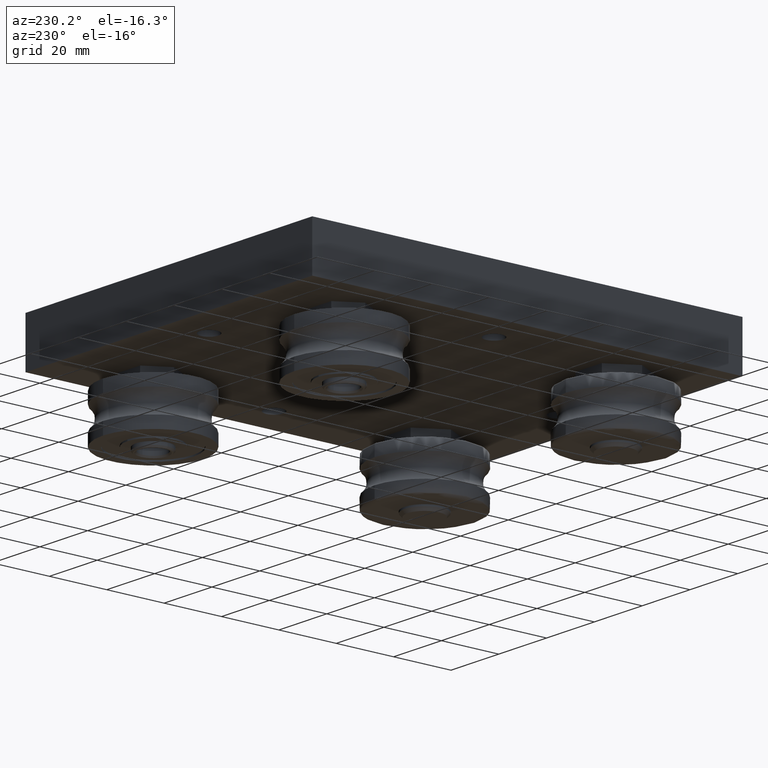
[diagram: clean part render]
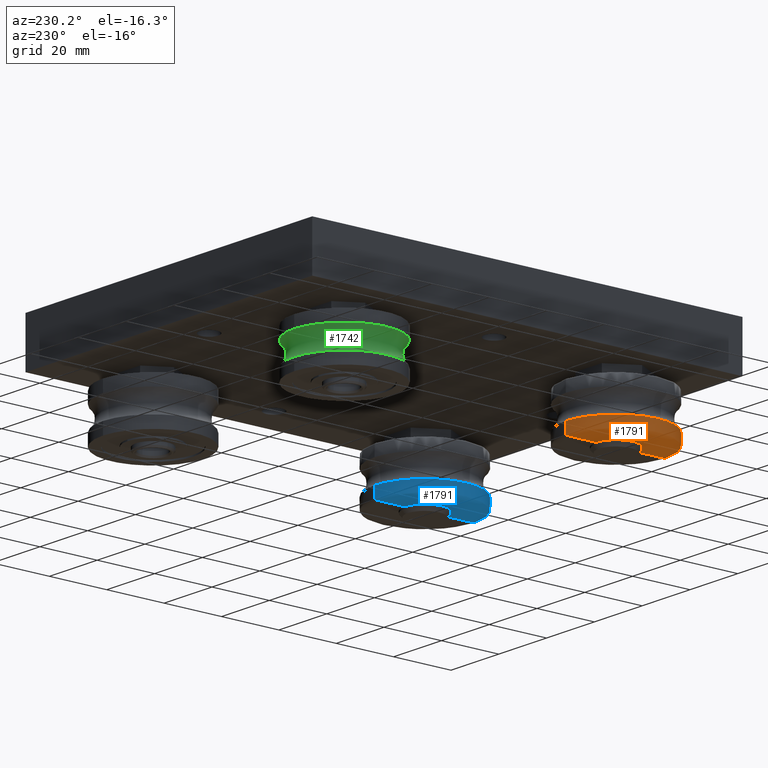
[diagram: same view with three faces highlighted in distinct colors, each labeled with its STEP entity id]
A machine part, auxiliary view with three faces highlighted in distinct colors.
Their STEP definitions:

[orange] entity #1791 — the highlighted face is a freeform B-spline surface patch.
#16=(
BOUNDED_SURFACE()
B_SPLINE_SURFACE(2,2,((#3297,#3298,#3299,#3300,#3301,#3302,#3303,#3304,
#3305),(#3306,#3307,#3308,#3309,#3310,#3311,#3312,#3313,#3314),(#3315,#3316,
#3317,#3318,#3319,#3320,#3321,#3322,#3323),(#3324,#3325,#3326,#3327,#3328,
#3329,#3330,#3331,#3332),(#3333,#3334,#3335,#3336,#3337,#3338,#3339,#3340,
#3341),(#3342,#3343,#3344,#3345,#3346,#3347,#3348,#3349,#3350),(#3351,#3352,
#3353,#3354,#3355,#3356,#3357,#3358,#3359)),.UNSPECIFIED.,.F.,.T.,.F.)
B_SPLINE_SURFACE_WITH_KNOTS((3,2,2,3),(3,2,2,2,3),(-15.7666360627003,-12.1996117257709,
-11.4142135623734,-1.41421356237309),(4.71238898038469,6.28318530717959,
7.85398163397448,9.42477796076938,10.9955742875643),.UNSPECIFIED.)
GEOMETRIC_REPRESENTATION_ITEM()
RATIONAL_B_SPLINE_SURFACE(((1.,0.707106781186548,1.,0.707106781186548,1.,
0.707106781186548,1.,0.707106781186548,1.),(1.,0.707106781186548,1.,0.707106781186548,
1.,0.707106781186548,1.,0.707106781186548,1.),(1.,0.707106781186548,1.,
0.707106781186548,1.,0.707106781186548,1.,0.707106781186548,1.),(0.707106781186549,
0.500000000000001,0.707106781186549,0.500000000000001,0.707106781186549,
0.500000000000001,0.707106781186549,0.500000000000001,0.707106781186549),
(1.,0.707106781186548,1.,0.707106781186548,1.,0.707106781186548,1.,0.707106781186548,
1.),(1.,0.707106781186548,1.,0.707106781186548,1.,0.707106781186548,1.,
0.707106781186548,1.),(1.,0.707106781186548,1.,0.707106781186548,1.,0.707106781186548,
1.,0.707106781186548,1.)))
REPRESENTATION_ITEM('')
SURFACE()
);
#76=(
BOUNDED_CURVE()
B_SPLINE_CURVE(2,(#3360,#3361,#3362,#3363,#3364,#3365,#3366),
 .UNSPECIFIED.,.F.,.F.)
B_SPLINE_CURVE_WITH_KNOTS((3,2,2,3),(-15.7344967849095,-12.1996117257709,
-11.4142135623734,-1.41421356237309),.UNSPECIFIED.)
CURVE()
GEOMETRIC_REPRESENTATION_ITEM()
RATIONAL_B_SPLINE_CURVE((1.,1.,1.,0.707106781186548,1.,1.,1.))
REPRESENTATION_ITEM('')
);
#77=(
BOUNDED_CURVE()
B_SPLINE_CURVE(2,(#3368,#3369,#3370,#3371,#3372,#3373,#3374),
 .UNSPECIFIED.,.F.,.F.)
B_SPLINE_CURVE_WITH_KNOTS((3,2,2,3),(-15.7344967849095,-12.1996117257709,
-11.4142135623734,-1.41421356237309),.UNSPECIFIED.)
CURVE()
GEOMETRIC_REPRESENTATION_ITEM()
RATIONAL_B_SPLINE_CURVE((1.,1.,1.,0.707106781186548,1.,1.,1.))
REPRESENTATION_ITEM('')
);
#329=FACE_OUTER_BOUND('',#477,.T.);
#477=EDGE_LOOP('',(#1530,#1531,#1532,#1533,#1534));
#789=CIRCLE('',#2095,17.5);
#794=CIRCLE('',#2100,17.5);
#803=CIRCLE('',#2109,6.99999999999975);
#917=VERTEX_POINT('',#3095);
#918=VERTEX_POINT('',#3097);
#929=VERTEX_POINT('',#3128);
#930=VERTEX_POINT('',#3129);
#931=VERTEX_POINT('',#3131);
#1129=EDGE_CURVE('',#930,#931,#789,.F.);
#1134=EDGE_CURVE('',#931,#929,#794,.F.);
#1145=EDGE_CURVE('',#930,#918,#76,.T.);
#1146=EDGE_CURVE('',#917,#918,#803,.T.);
#1147=EDGE_CURVE('',#929,#917,#77,.T.);
#1530=ORIENTED_EDGE('',*,*,#1129,.F.);
#1531=ORIENTED_EDGE('',*,*,#1145,.T.);
#1532=ORIENTED_EDGE('',*,*,#1146,.F.);
#1533=ORIENTED_EDGE('',*,*,#1147,.F.);
#1534=ORIENTED_EDGE('',*,*,#1134,.F.);
#1791=ADVANCED_FACE('',(#329),#16,.T.);
#2095=AXIS2_PLACEMENT_3D('',#3132,#2565,#2566);
#2100=AXIS2_PLACEMENT_3D('',#3140,#2575,#2576);
#2109=AXIS2_PLACEMENT_3D('',#3367,#2593,#2594);
#2565=DIRECTION('center_axis',(-1.98389456597707E-15,0.,-1.));
#2566=DIRECTION('ref_axis',(-1.,0.,1.98389456597707E-15));
#2575=DIRECTION('center_axis',(-1.98389456597707E-15,0.,-1.));
#2576=DIRECTION('ref_axis',(-1.,0.,1.98389456597707E-15));
#2593=DIRECTION('center_axis',(-5.15460690004499E-14,-5.154606900045E-14,
-1.));
#2594=DIRECTION('ref_axis',(0.,1.,-5.154606900045E-14));
#3095=CARTESIAN_POINT('',(1.14352971536391E-11,7.00000000001182,-30.3000000001203));
#3097=CARTESIAN_POINT('',(1.14352971536391E-11,-6.99999999998718,-30.3000000001203));
#3128=CARTESIAN_POINT('',(1.03181352351101E-11,17.500000000012,-26.2651149409818));
#3129=CARTESIAN_POINT('',(1.14352971536391E-11,-17.4999999999877,-26.2651149409818));
#3131=CARTESIAN_POINT('',(17.5000000000119,-2.14313189850989E-15,-26.2651149409818));
#3132=CARTESIAN_POINT('Origin',(1.18873911500323E-11,1.2115308756222E-11,
-26.2651149409818));
#3140=CARTESIAN_POINT('Origin',(1.18873911500323E-11,1.2115308756222E-11,
-26.2651149409818));
#3297=CARTESIAN_POINT('Ctrl Pts',(1.16792880938537E-11,-17.4999999999878,
-26.232975663191));
#3298=CARTESIAN_POINT('Ctrl Pts',(17.5000000000116,-17.499999999988,-26.232975663191));
#3299=CARTESIAN_POINT('Ctrl Pts',(17.5000000000118,1.19071419391048E-11,
-26.232975663191));
#3300=CARTESIAN_POINT('Ctrl Pts',(17.500000000012,17.5000000000118,-26.232975663191));
#3301=CARTESIAN_POINT('Ctrl Pts',(1.20956217280881E-11,17.500000000012,
-26.232975663191));
#3302=CARTESIAN_POINT('Ctrl Pts',(-17.4999999999878,17.5000000000122,-26.2329756631909));
#3303=CARTESIAN_POINT('Ctrl Pts',(-17.499999999988,1.23234755733392E-11,
-26.2329756631909));
#3304=CARTESIAN_POINT('Ctrl Pts',(-17.4999999999882,-17.4999999999876,-26.2329756631909));
#3305=CARTESIAN_POINT('Ctrl Pts',(1.16792880938537E-11,-17.4999999999878,
-26.232975663191));
#3306=CARTESIAN_POINT('Ctrl Pts',(1.16757497937544E-11,-17.4999999999878,
-28.0164878316558));
#3307=CARTESIAN_POINT('Ctrl Pts',(17.5000000000116,-17.499999999988,-28.0164878316558));
#3308=CARTESIAN_POINT('Ctrl Pts',(17.5000000000118,1.19071419391048E-11,
-28.0164878316558));
#3309=CARTESIAN_POINT('Ctrl Pts',(17.500000000012,17.5000000000118,-28.0164878316558));
#3310=CARTESIAN_POINT('Ctrl Pts',(1.20920834279888E-11,17.500000000012,
-28.0164878316558));
#3311=CARTESIAN_POINT('Ctrl Pts',(-17.4999999999878,17.5000000000122,-28.0164878316557));
#3312=CARTESIAN_POINT('Ctrl Pts',(-17.499999999988,1.23234755733392E-11,
-28.0164878316557));
#3313=CARTESIAN_POINT('Ctrl Pts',(-17.4999999999882,-17.4999999999876,-28.0164878316557));
#3314=CARTESIAN_POINT('Ctrl Pts',(1.16757497937544E-11,-17.4999999999878,
-28.0164878316558));
#3315=CARTESIAN_POINT('Ctrl Pts',(1.1672211493655E-11,-17.4999999999878,
-29.8000000001204));
#3316=CARTESIAN_POINT('Ctrl Pts',(17.5000000000116,-17.499999999988,-29.8000000001204));
#3317=CARTESIAN_POINT('Ctrl Pts',(17.5000000000118,1.19071419391048E-11,
-29.8000000001204));
#3318=CARTESIAN_POINT('Ctrl Pts',(17.500000000012,17.5000000000118,-29.8000000001204));
#3319=CARTESIAN_POINT('Ctrl Pts',(1.20885451278894E-11,17.500000000012,
-29.8000000001204));
#3320=CARTESIAN_POINT('Ctrl Pts',(-17.4999999999878,17.5000000000122,-29.8000000001203));
#3321=CARTESIAN_POINT('Ctrl Pts',(-17.499999999988,1.23234755733392E-11,
-29.8000000001203));
#3322=CARTESIAN_POINT('Ctrl Pts',(-17.4999999999882,-17.4999999999876,-29.8000000001203));
#3323=CARTESIAN_POINT('Ctrl Pts',(1.1672211493655E-11,-17.4999999999878,
-29.8000000001204));
#3324=CARTESIAN_POINT('Ctrl Pts',(1.16771541375303E-11,-17.499999999988,
-30.3000000001205));
#3325=CARTESIAN_POINT('Ctrl Pts',(17.5000000000118,-17.4999999999882,-30.3000000001205));
#3326=CARTESIAN_POINT('Ctrl Pts',(17.500000000012,1.19130765302631E-11,
-30.3000000001205));
#3327=CARTESIAN_POINT('Ctrl Pts',(17.5000000000122,17.500000000012,-30.3000000001205));
#3328=CARTESIAN_POINT('Ctrl Pts',(1.20816185894481E-11,17.5000000000122,
-30.3000000001205));
#3329=CARTESIAN_POINT('Ctrl Pts',(-17.499999999988,17.5000000000124,-30.3000000001204));
#3330=CARTESIAN_POINT('Ctrl Pts',(-17.4999999999882,1.23175409821809E-11,
-30.3000000001204));
#3331=CARTESIAN_POINT('Ctrl Pts',(-17.4999999999884,-17.4999999999878,-30.3000000001204));
#3332=CARTESIAN_POINT('Ctrl Pts',(1.16771541375303E-11,-17.499999999988,
-30.3000000001205));
#3333=CARTESIAN_POINT('Ctrl Pts',(1.1671219546372E-11,-16.9999999999877,
-30.3000000001204));
#3334=CARTESIAN_POINT('Ctrl Pts',(17.0000000000115,-16.9999999999879,-30.3000000001204));
#3335=CARTESIAN_POINT('Ctrl Pts',(17.0000000000117,1.19071419391048E-11,
-30.3000000001204));
#3336=CARTESIAN_POINT('Ctrl Pts',(17.0000000000119,17.0000000000117,-30.3000000001204));
#3337=CARTESIAN_POINT('Ctrl Pts',(1.20875531806064E-11,17.0000000000119,
-30.3000000001204));
#3338=CARTESIAN_POINT('Ctrl Pts',(-16.9999999999877,17.0000000000121,-30.3000000001203));
#3339=CARTESIAN_POINT('Ctrl Pts',(-16.9999999999879,1.23234755733392E-11,
-30.3000000001203));
#3340=CARTESIAN_POINT('Ctrl Pts',(-16.9999999999881,-16.9999999999875,-30.3000000001203));
#3341=CARTESIAN_POINT('Ctrl Pts',(1.1671219546372E-11,-16.9999999999877,
-30.3000000001204));
#3342=CARTESIAN_POINT('Ctrl Pts',(1.16434639707564E-11,-11.9999999999877,
-30.3000000001204));
#3343=CARTESIAN_POINT('Ctrl Pts',(12.0000000000115,-11.9999999999879,-30.3000000001204));
#3344=CARTESIAN_POINT('Ctrl Pts',(12.0000000000117,1.18793863634892E-11,
-30.3000000001204));
#3345=CARTESIAN_POINT('Ctrl Pts',(12.0000000000119,12.0000000000117,-30.3000000001204));
#3346=CARTESIAN_POINT('Ctrl Pts',(1.2115308756222E-11,12.0000000000119,
-30.3000000001204));
#3347=CARTESIAN_POINT('Ctrl Pts',(-11.9999999999877,12.0000000000122,-30.3000000001204));
#3348=CARTESIAN_POINT('Ctrl Pts',(-11.9999999999879,1.23512311489548E-11,
-30.3000000001204));
#3349=CARTESIAN_POINT('Ctrl Pts',(-11.9999999999882,-11.9999999999875,-30.3000000001204));
#3350=CARTESIAN_POINT('Ctrl Pts',(1.16434639707564E-11,-11.9999999999877,
-30.3000000001204));
#3351=CARTESIAN_POINT('Ctrl Pts',(1.16157083951407E-11,-6.99999999998767,
-30.3000000001204));
#3352=CARTESIAN_POINT('Ctrl Pts',(7.0000000000114,-6.99999999998793,-30.3000000001204));
#3353=CARTESIAN_POINT('Ctrl Pts',(7.00000000001166,1.18516307878735E-11,
-30.3000000001204));
#3354=CARTESIAN_POINT('Ctrl Pts',(7.00000000001192,7.00000000001163,-30.3000000001204));
#3355=CARTESIAN_POINT('Ctrl Pts',(1.21430643318377E-11,7.0000000000119,
-30.3000000001204));
#3356=CARTESIAN_POINT('Ctrl Pts',(-6.99999999998764,7.00000000001216,-30.3000000001204));
#3357=CARTESIAN_POINT('Ctrl Pts',(-6.9999999999879,1.23789867245705E-11,
-30.3000000001204));
#3358=CARTESIAN_POINT('Ctrl Pts',(-6.99999999998816,-6.9999999999874,-30.3000000001204));
#3359=CARTESIAN_POINT('Ctrl Pts',(1.16157083951407E-11,-6.99999999998767,
-30.3000000001204));
#3360=CARTESIAN_POINT('Ctrl Pts',(1.14352971536391E-11,-17.4999999999877,
-26.2651149409818));
#3361=CARTESIAN_POINT('Ctrl Pts',(1.14352971536391E-11,-17.4999999999877,
-28.0325574705511));
#3362=CARTESIAN_POINT('Ctrl Pts',(1.14352971536391E-11,-17.4999999999877,
-29.8000000001203));
#3363=CARTESIAN_POINT('Ctrl Pts',(1.16186841942599E-11,-17.4999999999876,
-30.3000000001205));
#3364=CARTESIAN_POINT('Ctrl Pts',(1.14352971536391E-11,-16.9999999999877,
-30.3000000001203));
#3365=CARTESIAN_POINT('Ctrl Pts',(1.14352971536391E-11,-11.9999999999876,
-30.3000000001203));
#3366=CARTESIAN_POINT('Ctrl Pts',(1.14352971536391E-11,-6.99999999998718,
-30.3000000001203));
#3367=CARTESIAN_POINT('Origin',(1.14352971536391E-11,1.23789867245705E-11,
-30.30000000012));
#3368=CARTESIAN_POINT('Ctrl Pts',(1.14352971536391E-11,17.5000000000119,
-26.2651149409818));
#3369=CARTESIAN_POINT('Ctrl Pts',(1.14352971536391E-11,17.5000000000119,
-28.0325574705511));
#3370=CARTESIAN_POINT('Ctrl Pts',(1.14352971536391E-11,17.5000000000119,
-29.8000000001203));
#3371=CARTESIAN_POINT('Ctrl Pts',(1.16186841942599E-11,17.5000000000119,
-30.3000000001205));
#3372=CARTESIAN_POINT('Ctrl Pts',(1.14352971536391E-11,17.0000000000118,
-30.3000000001203));
#3373=CARTESIAN_POINT('Ctrl Pts',(1.14352971536391E-11,12.0000000000118,
-30.3000000001203));
#3374=CARTESIAN_POINT('Ctrl Pts',(1.14352971536391E-11,7.00000000001182,
-30.3000000001203));

[blue] entity #1791 — the highlighted face is a freeform B-spline surface patch.
#16=(
BOUNDED_SURFACE()
B_SPLINE_SURFACE(2,2,((#3297,#3298,#3299,#3300,#3301,#3302,#3303,#3304,
#3305),(#3306,#3307,#3308,#3309,#3310,#3311,#3312,#3313,#3314),(#3315,#3316,
#3317,#3318,#3319,#3320,#3321,#3322,#3323),(#3324,#3325,#3326,#3327,#3328,
#3329,#3330,#3331,#3332),(#3333,#3334,#3335,#3336,#3337,#3338,#3339,#3340,
#3341),(#3342,#3343,#3344,#3345,#3346,#3347,#3348,#3349,#3350),(#3351,#3352,
#3353,#3354,#3355,#3356,#3357,#3358,#3359)),.UNSPECIFIED.,.F.,.T.,.F.)
B_SPLINE_SURFACE_WITH_KNOTS((3,2,2,3),(3,2,2,2,3),(-15.7666360627003,-12.1996117257709,
-11.4142135623734,-1.41421356237309),(4.71238898038469,6.28318530717959,
7.85398163397448,9.42477796076938,10.9955742875643),.UNSPECIFIED.)
GEOMETRIC_REPRESENTATION_ITEM()
RATIONAL_B_SPLINE_SURFACE(((1.,0.707106781186548,1.,0.707106781186548,1.,
0.707106781186548,1.,0.707106781186548,1.),(1.,0.707106781186548,1.,0.707106781186548,
1.,0.707106781186548,1.,0.707106781186548,1.),(1.,0.707106781186548,1.,
0.707106781186548,1.,0.707106781186548,1.,0.707106781186548,1.),(0.707106781186549,
0.500000000000001,0.707106781186549,0.500000000000001,0.707106781186549,
0.500000000000001,0.707106781186549,0.500000000000001,0.707106781186549),
(1.,0.707106781186548,1.,0.707106781186548,1.,0.707106781186548,1.,0.707106781186548,
1.),(1.,0.707106781186548,1.,0.707106781186548,1.,0.707106781186548,1.,
0.707106781186548,1.),(1.,0.707106781186548,1.,0.707106781186548,1.,0.707106781186548,
1.,0.707106781186548,1.)))
REPRESENTATION_ITEM('')
SURFACE()
);
#76=(
BOUNDED_CURVE()
B_SPLINE_CURVE(2,(#3360,#3361,#3362,#3363,#3364,#3365,#3366),
 .UNSPECIFIED.,.F.,.F.)
B_SPLINE_CURVE_WITH_KNOTS((3,2,2,3),(-15.7344967849095,-12.1996117257709,
-11.4142135623734,-1.41421356237309),.UNSPECIFIED.)
CURVE()
GEOMETRIC_REPRESENTATION_ITEM()
RATIONAL_B_SPLINE_CURVE((1.,1.,1.,0.707106781186548,1.,1.,1.))
REPRESENTATION_ITEM('')
);
#77=(
BOUNDED_CURVE()
B_SPLINE_CURVE(2,(#3368,#3369,#3370,#3371,#3372,#3373,#3374),
 .UNSPECIFIED.,.F.,.F.)
B_SPLINE_CURVE_WITH_KNOTS((3,2,2,3),(-15.7344967849095,-12.1996117257709,
-11.4142135623734,-1.41421356237309),.UNSPECIFIED.)
CURVE()
GEOMETRIC_REPRESENTATION_ITEM()
RATIONAL_B_SPLINE_CURVE((1.,1.,1.,0.707106781186548,1.,1.,1.))
REPRESENTATION_ITEM('')
);
#329=FACE_OUTER_BOUND('',#477,.T.);
#477=EDGE_LOOP('',(#1530,#1531,#1532,#1533,#1534));
#789=CIRCLE('',#2095,17.5);
#794=CIRCLE('',#2100,17.5);
#803=CIRCLE('',#2109,6.99999999999975);
#917=VERTEX_POINT('',#3095);
#918=VERTEX_POINT('',#3097);
#929=VERTEX_POINT('',#3128);
#930=VERTEX_POINT('',#3129);
#931=VERTEX_POINT('',#3131);
#1129=EDGE_CURVE('',#930,#931,#789,.F.);
#1134=EDGE_CURVE('',#931,#929,#794,.F.);
#1145=EDGE_CURVE('',#930,#918,#76,.T.);
#1146=EDGE_CURVE('',#917,#918,#803,.T.);
#1147=EDGE_CURVE('',#929,#917,#77,.T.);
#1530=ORIENTED_EDGE('',*,*,#1129,.F.);
#1531=ORIENTED_EDGE('',*,*,#1145,.T.);
#1532=ORIENTED_EDGE('',*,*,#1146,.F.);
#1533=ORIENTED_EDGE('',*,*,#1147,.F.);
#1534=ORIENTED_EDGE('',*,*,#1134,.F.);
#1791=ADVANCED_FACE('',(#329),#16,.T.);
#2095=AXIS2_PLACEMENT_3D('',#3132,#2565,#2566);
#2100=AXIS2_PLACEMENT_3D('',#3140,#2575,#2576);
#2109=AXIS2_PLACEMENT_3D('',#3367,#2593,#2594);
#2565=DIRECTION('center_axis',(-1.98389456597707E-15,0.,-1.));
#2566=DIRECTION('ref_axis',(-1.,0.,1.98389456597707E-15));
#2575=DIRECTION('center_axis',(-1.98389456597707E-15,0.,-1.));
#2576=DIRECTION('ref_axis',(-1.,0.,1.98389456597707E-15));
#2593=DIRECTION('center_axis',(-5.15460690004499E-14,-5.154606900045E-14,
-1.));
#2594=DIRECTION('ref_axis',(0.,1.,-5.154606900045E-14));
#3095=CARTESIAN_POINT('',(1.14352971536391E-11,7.00000000001182,-30.3000000001203));
#3097=CARTESIAN_POINT('',(1.14352971536391E-11,-6.99999999998718,-30.3000000001203));
#3128=CARTESIAN_POINT('',(1.03181352351101E-11,17.500000000012,-26.2651149409818));
#3129=CARTESIAN_POINT('',(1.14352971536391E-11,-17.4999999999877,-26.2651149409818));
#3131=CARTESIAN_POINT('',(17.5000000000119,-2.14313189850989E-15,-26.2651149409818));
#3132=CARTESIAN_POINT('Origin',(1.18873911500323E-11,1.2115308756222E-11,
-26.2651149409818));
#3140=CARTESIAN_POINT('Origin',(1.18873911500323E-11,1.2115308756222E-11,
-26.2651149409818));
#3297=CARTESIAN_POINT('Ctrl Pts',(1.16792880938537E-11,-17.4999999999878,
-26.232975663191));
#3298=CARTESIAN_POINT('Ctrl Pts',(17.5000000000116,-17.499999999988,-26.232975663191));
#3299=CARTESIAN_POINT('Ctrl Pts',(17.5000000000118,1.19071419391048E-11,
-26.232975663191));
#3300=CARTESIAN_POINT('Ctrl Pts',(17.500000000012,17.5000000000118,-26.232975663191));
#3301=CARTESIAN_POINT('Ctrl Pts',(1.20956217280881E-11,17.500000000012,
-26.232975663191));
#3302=CARTESIAN_POINT('Ctrl Pts',(-17.4999999999878,17.5000000000122,-26.2329756631909));
#3303=CARTESIAN_POINT('Ctrl Pts',(-17.499999999988,1.23234755733392E-11,
-26.2329756631909));
#3304=CARTESIAN_POINT('Ctrl Pts',(-17.4999999999882,-17.4999999999876,-26.2329756631909));
#3305=CARTESIAN_POINT('Ctrl Pts',(1.16792880938537E-11,-17.4999999999878,
-26.232975663191));
#3306=CARTESIAN_POINT('Ctrl Pts',(1.16757497937544E-11,-17.4999999999878,
-28.0164878316558));
#3307=CARTESIAN_POINT('Ctrl Pts',(17.5000000000116,-17.499999999988,-28.0164878316558));
#3308=CARTESIAN_POINT('Ctrl Pts',(17.5000000000118,1.19071419391048E-11,
-28.0164878316558));
#3309=CARTESIAN_POINT('Ctrl Pts',(17.500000000012,17.5000000000118,-28.0164878316558));
#3310=CARTESIAN_POINT('Ctrl Pts',(1.20920834279888E-11,17.500000000012,
-28.0164878316558));
#3311=CARTESIAN_POINT('Ctrl Pts',(-17.4999999999878,17.5000000000122,-28.0164878316557));
#3312=CARTESIAN_POINT('Ctrl Pts',(-17.499999999988,1.23234755733392E-11,
-28.0164878316557));
#3313=CARTESIAN_POINT('Ctrl Pts',(-17.4999999999882,-17.4999999999876,-28.0164878316557));
#3314=CARTESIAN_POINT('Ctrl Pts',(1.16757497937544E-11,-17.4999999999878,
-28.0164878316558));
#3315=CARTESIAN_POINT('Ctrl Pts',(1.1672211493655E-11,-17.4999999999878,
-29.8000000001204));
#3316=CARTESIAN_POINT('Ctrl Pts',(17.5000000000116,-17.499999999988,-29.8000000001204));
#3317=CARTESIAN_POINT('Ctrl Pts',(17.5000000000118,1.19071419391048E-11,
-29.8000000001204));
#3318=CARTESIAN_POINT('Ctrl Pts',(17.500000000012,17.5000000000118,-29.8000000001204));
#3319=CARTESIAN_POINT('Ctrl Pts',(1.20885451278894E-11,17.500000000012,
-29.8000000001204));
#3320=CARTESIAN_POINT('Ctrl Pts',(-17.4999999999878,17.5000000000122,-29.8000000001203));
#3321=CARTESIAN_POINT('Ctrl Pts',(-17.499999999988,1.23234755733392E-11,
-29.8000000001203));
#3322=CARTESIAN_POINT('Ctrl Pts',(-17.4999999999882,-17.4999999999876,-29.8000000001203));
#3323=CARTESIAN_POINT('Ctrl Pts',(1.1672211493655E-11,-17.4999999999878,
-29.8000000001204));
#3324=CARTESIAN_POINT('Ctrl Pts',(1.16771541375303E-11,-17.499999999988,
-30.3000000001205));
#3325=CARTESIAN_POINT('Ctrl Pts',(17.5000000000118,-17.4999999999882,-30.3000000001205));
#3326=CARTESIAN_POINT('Ctrl Pts',(17.500000000012,1.19130765302631E-11,
-30.3000000001205));
#3327=CARTESIAN_POINT('Ctrl Pts',(17.5000000000122,17.500000000012,-30.3000000001205));
#3328=CARTESIAN_POINT('Ctrl Pts',(1.20816185894481E-11,17.5000000000122,
-30.3000000001205));
#3329=CARTESIAN_POINT('Ctrl Pts',(-17.499999999988,17.5000000000124,-30.3000000001204));
#3330=CARTESIAN_POINT('Ctrl Pts',(-17.4999999999882,1.23175409821809E-11,
-30.3000000001204));
#3331=CARTESIAN_POINT('Ctrl Pts',(-17.4999999999884,-17.4999999999878,-30.3000000001204));
#3332=CARTESIAN_POINT('Ctrl Pts',(1.16771541375303E-11,-17.499999999988,
-30.3000000001205));
#3333=CARTESIAN_POINT('Ctrl Pts',(1.1671219546372E-11,-16.9999999999877,
-30.3000000001204));
#3334=CARTESIAN_POINT('Ctrl Pts',(17.0000000000115,-16.9999999999879,-30.3000000001204));
#3335=CARTESIAN_POINT('Ctrl Pts',(17.0000000000117,1.19071419391048E-11,
-30.3000000001204));
#3336=CARTESIAN_POINT('Ctrl Pts',(17.0000000000119,17.0000000000117,-30.3000000001204));
#3337=CARTESIAN_POINT('Ctrl Pts',(1.20875531806064E-11,17.0000000000119,
-30.3000000001204));
#3338=CARTESIAN_POINT('Ctrl Pts',(-16.9999999999877,17.0000000000121,-30.3000000001203));
#3339=CARTESIAN_POINT('Ctrl Pts',(-16.9999999999879,1.23234755733392E-11,
-30.3000000001203));
#3340=CARTESIAN_POINT('Ctrl Pts',(-16.9999999999881,-16.9999999999875,-30.3000000001203));
#3341=CARTESIAN_POINT('Ctrl Pts',(1.1671219546372E-11,-16.9999999999877,
-30.3000000001204));
#3342=CARTESIAN_POINT('Ctrl Pts',(1.16434639707564E-11,-11.9999999999877,
-30.3000000001204));
#3343=CARTESIAN_POINT('Ctrl Pts',(12.0000000000115,-11.9999999999879,-30.3000000001204));
#3344=CARTESIAN_POINT('Ctrl Pts',(12.0000000000117,1.18793863634892E-11,
-30.3000000001204));
#3345=CARTESIAN_POINT('Ctrl Pts',(12.0000000000119,12.0000000000117,-30.3000000001204));
#3346=CARTESIAN_POINT('Ctrl Pts',(1.2115308756222E-11,12.0000000000119,
-30.3000000001204));
#3347=CARTESIAN_POINT('Ctrl Pts',(-11.9999999999877,12.0000000000122,-30.3000000001204));
#3348=CARTESIAN_POINT('Ctrl Pts',(-11.9999999999879,1.23512311489548E-11,
-30.3000000001204));
#3349=CARTESIAN_POINT('Ctrl Pts',(-11.9999999999882,-11.9999999999875,-30.3000000001204));
#3350=CARTESIAN_POINT('Ctrl Pts',(1.16434639707564E-11,-11.9999999999877,
-30.3000000001204));
#3351=CARTESIAN_POINT('Ctrl Pts',(1.16157083951407E-11,-6.99999999998767,
-30.3000000001204));
#3352=CARTESIAN_POINT('Ctrl Pts',(7.0000000000114,-6.99999999998793,-30.3000000001204));
#3353=CARTESIAN_POINT('Ctrl Pts',(7.00000000001166,1.18516307878735E-11,
-30.3000000001204));
#3354=CARTESIAN_POINT('Ctrl Pts',(7.00000000001192,7.00000000001163,-30.3000000001204));
#3355=CARTESIAN_POINT('Ctrl Pts',(1.21430643318377E-11,7.0000000000119,
-30.3000000001204));
#3356=CARTESIAN_POINT('Ctrl Pts',(-6.99999999998764,7.00000000001216,-30.3000000001204));
#3357=CARTESIAN_POINT('Ctrl Pts',(-6.9999999999879,1.23789867245705E-11,
-30.3000000001204));
#3358=CARTESIAN_POINT('Ctrl Pts',(-6.99999999998816,-6.9999999999874,-30.3000000001204));
#3359=CARTESIAN_POINT('Ctrl Pts',(1.16157083951407E-11,-6.99999999998767,
-30.3000000001204));
#3360=CARTESIAN_POINT('Ctrl Pts',(1.14352971536391E-11,-17.4999999999877,
-26.2651149409818));
#3361=CARTESIAN_POINT('Ctrl Pts',(1.14352971536391E-11,-17.4999999999877,
-28.0325574705511));
#3362=CARTESIAN_POINT('Ctrl Pts',(1.14352971536391E-11,-17.4999999999877,
-29.8000000001203));
#3363=CARTESIAN_POINT('Ctrl Pts',(1.16186841942599E-11,-17.4999999999876,
-30.3000000001205));
#3364=CARTESIAN_POINT('Ctrl Pts',(1.14352971536391E-11,-16.9999999999877,
-30.3000000001203));
#3365=CARTESIAN_POINT('Ctrl Pts',(1.14352971536391E-11,-11.9999999999876,
-30.3000000001203));
#3366=CARTESIAN_POINT('Ctrl Pts',(1.14352971536391E-11,-6.99999999998718,
-30.3000000001203));
#3367=CARTESIAN_POINT('Origin',(1.14352971536391E-11,1.23789867245705E-11,
-30.30000000012));
#3368=CARTESIAN_POINT('Ctrl Pts',(1.14352971536391E-11,17.5000000000119,
-26.2651149409818));
#3369=CARTESIAN_POINT('Ctrl Pts',(1.14352971536391E-11,17.5000000000119,
-28.0325574705511));
#3370=CARTESIAN_POINT('Ctrl Pts',(1.14352971536391E-11,17.5000000000119,
-29.8000000001203));
#3371=CARTESIAN_POINT('Ctrl Pts',(1.16186841942599E-11,17.5000000000119,
-30.3000000001205));
#3372=CARTESIAN_POINT('Ctrl Pts',(1.14352971536391E-11,17.0000000000118,
-30.3000000001203));
#3373=CARTESIAN_POINT('Ctrl Pts',(1.14352971536391E-11,12.0000000000118,
-30.3000000001203));
#3374=CARTESIAN_POINT('Ctrl Pts',(1.14352971536391E-11,7.00000000001182,
-30.3000000001203));

[green] entity #1742 — the highlighted toroidal blend (fillet) surface has major radius 20.65 mm and minor (blend) radius 5 mm.
#103=TOROIDAL_SURFACE('',#1998,20.65,5.);
#280=FACE_OUTER_BOUND('',#417,.T.);
#417=EDGE_LOOP('',(#1326,#1327,#1328,#1329,#1330,#1331));
#741=CIRCLE('',#1996,17.5);
#742=CIRCLE('',#1997,17.5);
#743=CIRCLE('',#1999,5.);
#744=CIRCLE('',#2000,17.5);
#745=CIRCLE('',#2001,17.5);
#865=VERTEX_POINT('',#2892);
#866=VERTEX_POINT('',#2893);
#867=VERTEX_POINT('',#2898);
#868=VERTEX_POINT('',#2900);
#1031=EDGE_CURVE('',#865,#866,#741,.T.);
#1033=EDGE_CURVE('',#866,#865,#742,.T.);
#1034=EDGE_CURVE('',#866,#867,#743,.T.);
#1035=EDGE_CURVE('',#868,#867,#744,.T.);
#1036=EDGE_CURVE('',#867,#868,#745,.T.);
#1326=ORIENTED_EDGE('',*,*,#1031,.T.);
#1327=ORIENTED_EDGE('',*,*,#1034,.T.);
#1328=ORIENTED_EDGE('',*,*,#1035,.F.);
#1329=ORIENTED_EDGE('',*,*,#1036,.F.);
#1330=ORIENTED_EDGE('',*,*,#1034,.F.);
#1331=ORIENTED_EDGE('',*,*,#1033,.T.);
#1742=ADVANCED_FACE('',(#280),#103,.F.);
#1996=AXIS2_PLACEMENT_3D('',#2894,#2329,#2330);
#1997=AXIS2_PLACEMENT_3D('',#2896,#2332,#2333);
#1998=AXIS2_PLACEMENT_3D('',#2897,#2334,#2335);
#1999=AXIS2_PLACEMENT_3D('',#2899,#2336,#2337);
#2000=AXIS2_PLACEMENT_3D('',#2901,#2338,#2339);
#2001=AXIS2_PLACEMENT_3D('',#2902,#2340,#2341);
#2329=DIRECTION('center_axis',(1.,0.,0.));
#2330=DIRECTION('ref_axis',(0.,1.,0.));
#2332=DIRECTION('center_axis',(1.,0.,0.));
#2333=DIRECTION('ref_axis',(0.,1.,0.));
#2334=DIRECTION('center_axis',(1.,0.,0.));
#2335=DIRECTION('ref_axis',(0.,0.,-1.));
#2336=DIRECTION('center_axis',(0.,-1.,-1.22464679914735E-16));
#2337=DIRECTION('ref_axis',(0.,-1.22464679914735E-16,1.));
#2338=DIRECTION('center_axis',(1.,0.,0.));
#2339=DIRECTION('ref_axis',(0.,1.,0.));
#2340=DIRECTION('center_axis',(1.,0.,0.));
#2341=DIRECTION('ref_axis',(0.,1.,0.));
#2892=CARTESIAN_POINT('',(-3.88297566307078,-17.5,-2.14313189850787E-15));
#2893=CARTESIAN_POINT('',(-3.88297566307078,-2.14313189850787E-15,17.5));
#2894=CARTESIAN_POINT('Origin',(-3.88297566307078,0.,0.));
#2896=CARTESIAN_POINT('Origin',(-3.88297566307078,0.,0.));
#2897=CARTESIAN_POINT('Origin',(0.,0.,0.));
#2898=CARTESIAN_POINT('',(3.88297566307078,-2.14313189850787E-15,17.5));
#2899=CARTESIAN_POINT('Origin',(0.,-2.52889564023928E-15,20.65));
#2900=CARTESIAN_POINT('',(3.88297566307078,-17.5,-2.14313189850787E-15));
#2901=CARTESIAN_POINT('Origin',(3.88297566307078,0.,0.));
#2902=CARTESIAN_POINT('Origin',(3.88297566307078,0.,0.));